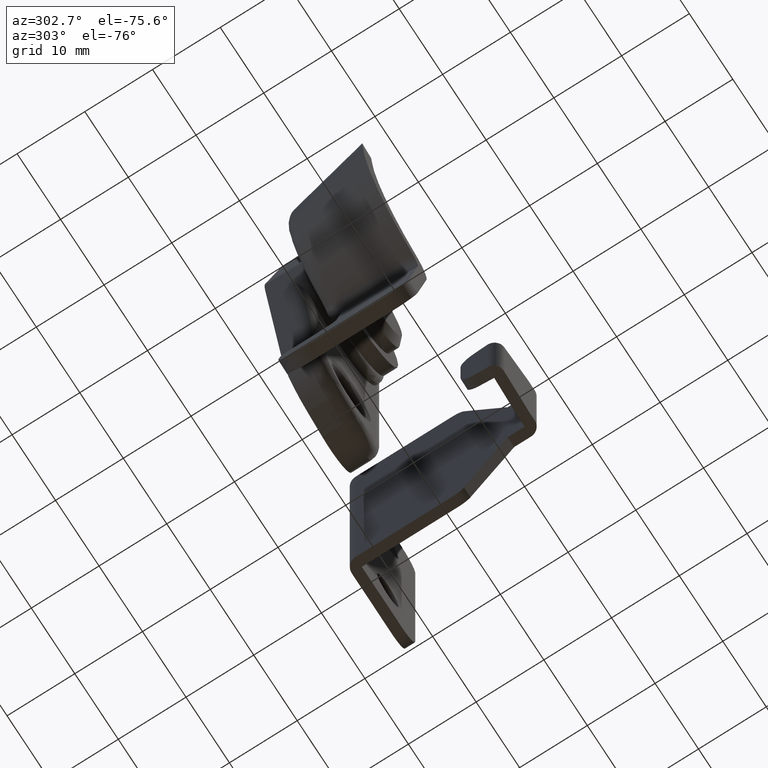
[diagram: clean part render]
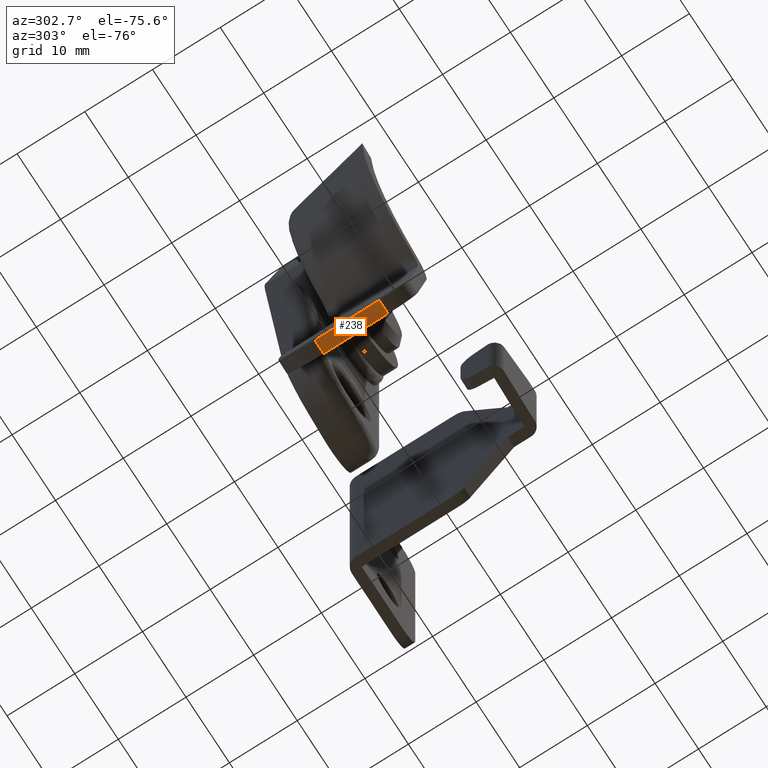
[diagram: same view with one face highlighted and labeled with its STEP entity id]
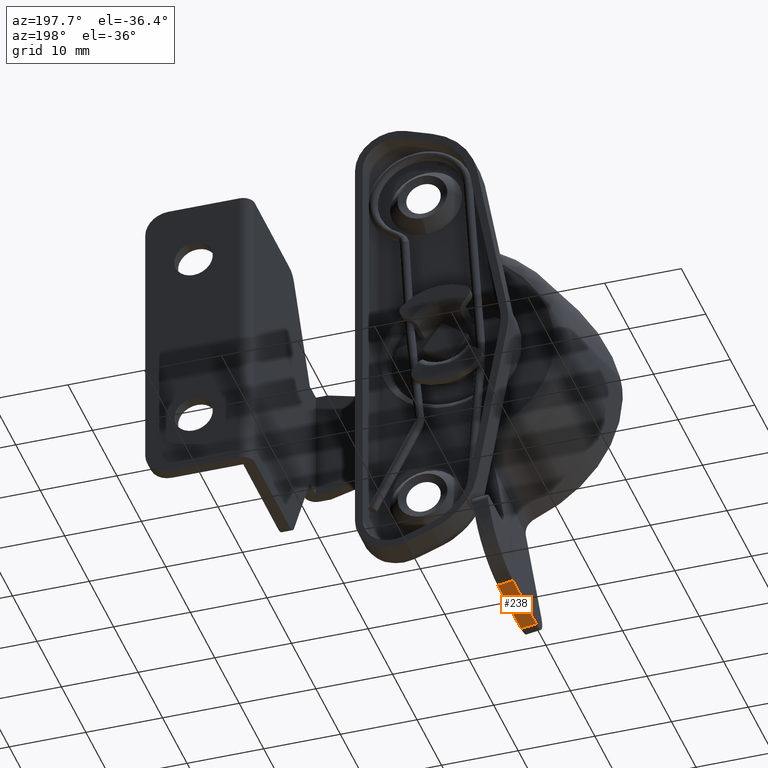
[diagram: same view with one face highlighted and labeled with its STEP entity id]
A machine part, auxiliary view. The second image highlights one B-rep face of the part: STEP entity #238.
A second angle (auxiliary view) of the same face is appended — the face is thin or edge-on in the first view.
In plain terms, the highlighted planar face has unit normal (-0.1519, 0, -0.9884).
Its self-contained STEP definition (entity closure, byte-faithful):
#238=ADVANCED_FACE('',(#926),#925,.T.);
#925=PLANE('',#2983);
#926=FACE_OUTER_BOUND('',#2984,.T.);
#2980=CARTESIAN_POINT('',(-2.97193515100E+01,-8.44999999998E+00,-3.57421545941E+01));
#2981=DIRECTION('',(-1.51914655832E-01,5.32074384552E-12,-9.88393614580E-01));
#2982=DIRECTION('',(8.08298970063E-13,1.00000000000E+00,5.25898924173E-12));
#2983=AXIS2_PLACEMENT_3D('',#2980,#2981,#2982);
#2984=EDGE_LOOP('',(#4753,#4754,#4755,#4756));
#4753=ORIENTED_EDGE('',*,*,#5630,.T.);
#4754=ORIENTED_EDGE('',*,*,#5609,.F.);
#4755=ORIENTED_EDGE('',*,*,#5758,.F.);
#4756=ORIENTED_EDGE('',*,*,#5751,.F.);
#5609=EDGE_CURVE('',#6381,#6388,#6389,.T.);
#5630=EDGE_CURVE('',#6526,#6388,#6527,.T.);
#5751=EDGE_CURVE('',#6526,#7336,#7343,.T.);
#5758=EDGE_CURVE('',#7336,#6381,#7388,.T.);
#6381=VERTEX_POINT('',#10016);
#6388=VERTEX_POINT('',#10021);
#6389=LINE('',#10022,#10023);
#6526=VERTEX_POINT('',#10108);
#6527=LINE('',#10109,#10110);
#7336=VERTEX_POINT('',#10630);
#7343=LINE('',#10635,#10636);
#7388=LINE('',#10660,#10661);
#10016=CARTESIAN_POINT('',(-2.95216727871E+01,-7.49999999998E+00,-3.57725375253E+01));
#10021=CARTESIAN_POINT('',(-2.75448855580E+01,-7.49999999998E+00,-3.60763668369E+01));
#10022=CARTESIAN_POINT('',(-2.95216727871E+01,-7.49999999998E+00,-3.57725375253E+01));
#10023=VECTOR('',#10024,2.00000000000E+00);
#10024=DIRECTION('',(9.88393614580E-01,0.00000000000E+00,-1.51914655832E-01));
#10108=CARTESIAN_POINT('',(-2.75448855579E+01,2.00000000003E+00,-3.60763668369E+01));
#10109=CARTESIAN_POINT('',(-2.75448855579E+01,2.00000000003E+00,-3.60763668369E+01));
#10110=VECTOR('',#10111,9.50000000001E+00);
#10111=DIRECTION('',(-8.08148869461E-13,-1.00000000000E+00,-5.25876418434E-12));
#10630=CARTESIAN_POINT('',(-2.95216727871E+01,2.00000000003E+00,-3.57725375252E+01));
#10635=CARTESIAN_POINT('',(-2.75448855579E+01,2.00000000003E+00,-3.60763668369E+01));
#10636=VECTOR('',#10637,2.00000000000E+00);
#10637=DIRECTION('',(-9.88393614580E-01,0.00000000000E+00,1.51914655832E-01));
#10660=CARTESIAN_POINT('',(-2.95216727871E+01,2.00000000003E+00,-3.57725375252E+01));
#10661=VECTOR('',#10662,9.50000000001E+00);
#10662=DIRECTION('',(-8.08148869461E-13,-1.00000000000E+00,-5.25876418434E-12));